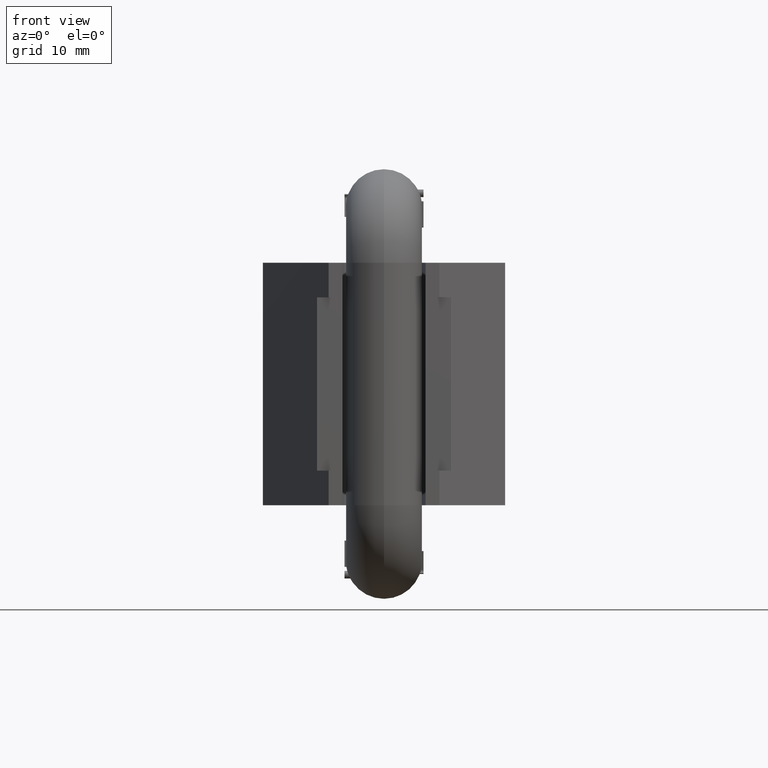
[diagram: clean part render]
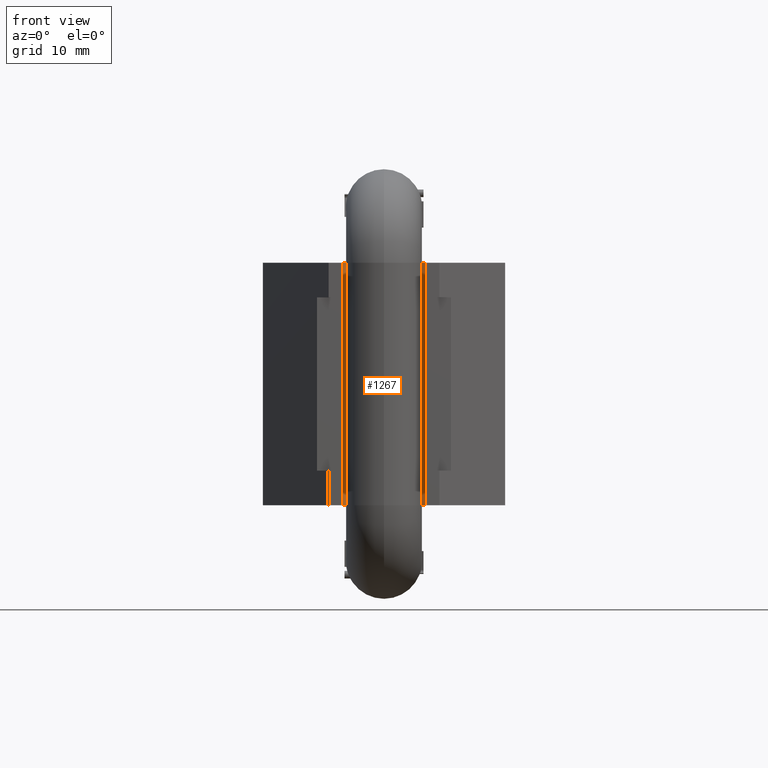
[diagram: same view with one face highlighted and labeled with its STEP entity id]
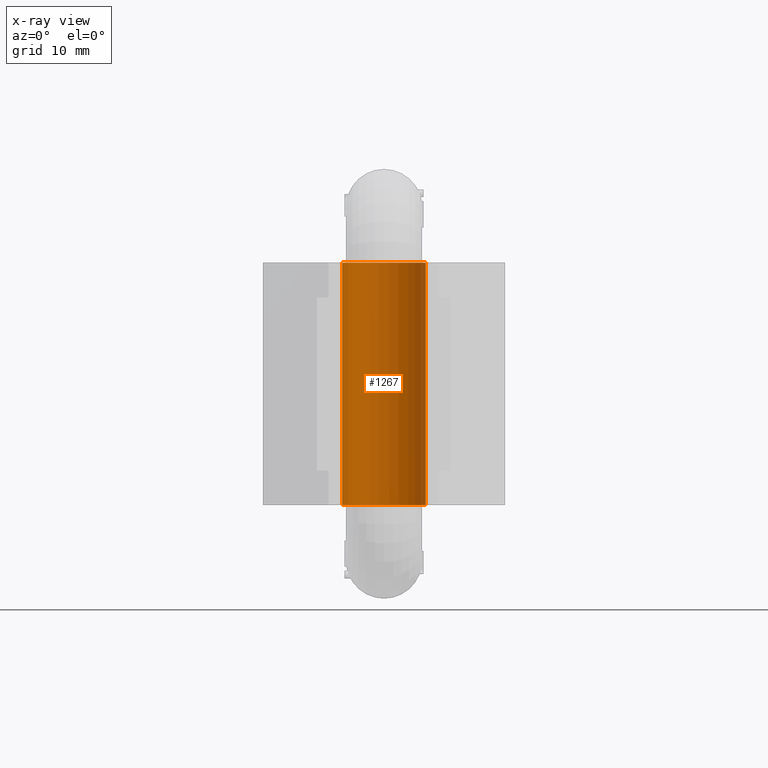
[diagram: x-ray of the same camera — body ghosted, the highlighted face saturated]
A machine part, front view. The second image highlights one B-rep face of the part: STEP entity #1267.
The next image is the same camera in x-ray: the body ghosted, the highlighted face saturated — about 0% of this face is hidden behind the body in this view.
In plain terms, the highlighted cylindrical surface (partial cylindrical patch) has radius 6 mm, axis along (0, 0, -1).
Its self-contained STEP definition (entity closure, byte-faithful):
#1267=ADVANCED_FACE('',(#1704),#1672,.F.);
#1672=CYLINDRICAL_SURFACE('',#7781,6.);
#1704=FACE_OUTER_BOUND('',#2102,.T.);
#2102=EDGE_LOOP('',(#2700,#2701,#2702,#2703));
#2564=CIRCLE('',#7766,6.);
#2565=CIRCLE('',#7768,6.);
#2700=ORIENTED_EDGE('',*,*,#5582,.T.);
#2701=ORIENTED_EDGE('',*,*,#5613,.F.);
#2702=ORIENTED_EDGE('',*,*,#5573,.F.);
#2703=ORIENTED_EDGE('',*,*,#5612,.T.);
#4834=VERTEX_POINT('',#9500);
#4835=VERTEX_POINT('',#9502);
#4842=VERTEX_POINT('',#9518);
#4843=VERTEX_POINT('',#9520);
#5573=EDGE_CURVE('',#4834,#4835,#2564,.T.);
#5582=EDGE_CURVE('',#4843,#4842,#2565,.T.);
#5612=EDGE_CURVE('',#4834,#4843,#6706,.T.);
#5613=EDGE_CURVE('',#4835,#4842,#6707,.T.);
#6706=LINE('',#9577,#7170);
#6707=LINE('',#9579,#7171);
#7170=VECTOR('',#8203,1.);
#7171=VECTOR('',#8206,1.);
#7766=AXIS2_PLACEMENT_3D('',#9501,#8138,#8139);
#7768=AXIS2_PLACEMENT_3D('',#9519,#8150,#8151);
#7781=AXIS2_PLACEMENT_3D('',#9580,#8207,#8208);
#8138=DIRECTION('',(0.,0.,-1.));
#8139=DIRECTION('',(1.,1.44560289664734E-16,0.));
#8150=DIRECTION('',(0.,0.,-1.));
#8151=DIRECTION('',(1.,1.44560289664734E-16,0.));
#8203=DIRECTION('',(0.,0.,-1.));
#8206=DIRECTION('',(0.,0.,-1.));
#8207=DIRECTION('',(0.,0.,-1.));
#8208=DIRECTION('',(-1.,0.,0.));
#9500=CARTESIAN_POINT('',(-6.,7.,17.5));
#9501=CARTESIAN_POINT('',(0.,7.,17.5));
#9502=CARTESIAN_POINT('',(6.,7.,17.5));
#9518=CARTESIAN_POINT('',(6.,7.,-17.5));
#9519=CARTESIAN_POINT('',(0.,7.,-17.5));
#9520=CARTESIAN_POINT('',(-6.,7.,-17.5));
#9577=CARTESIAN_POINT('',(-6.,7.,17.5));
#9579=CARTESIAN_POINT('',(6.,7.,17.5));
#9580=CARTESIAN_POINT('',(0.,7.,17.5));